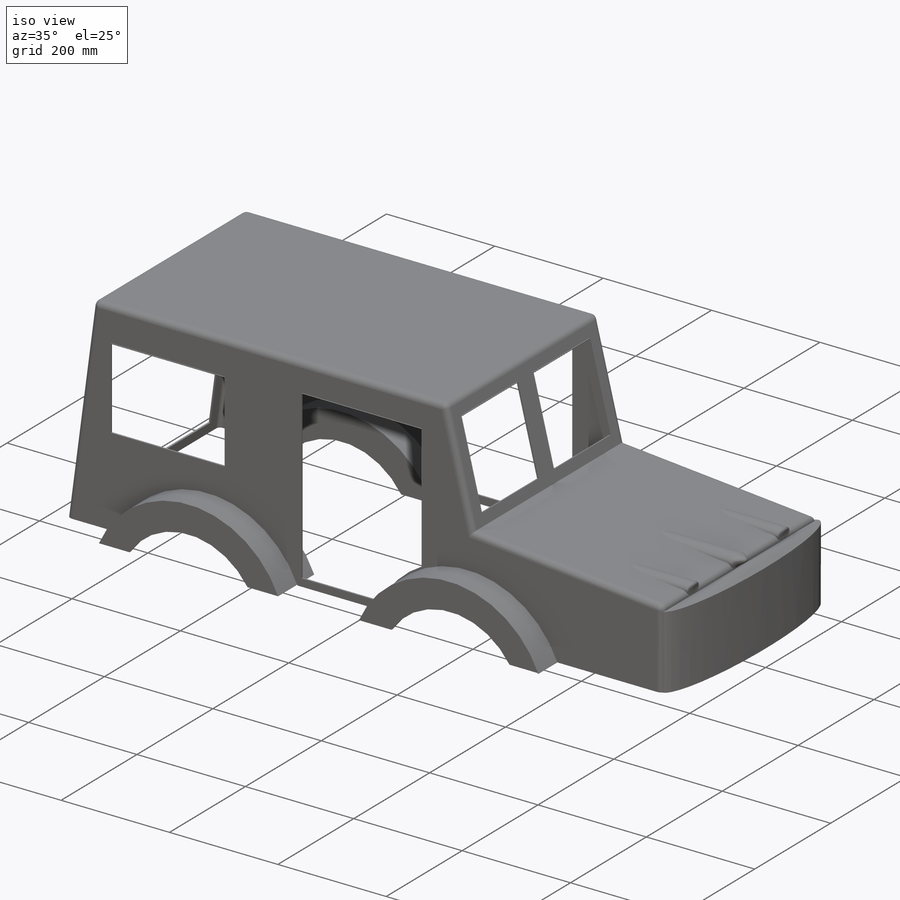
[diagram: iso view]
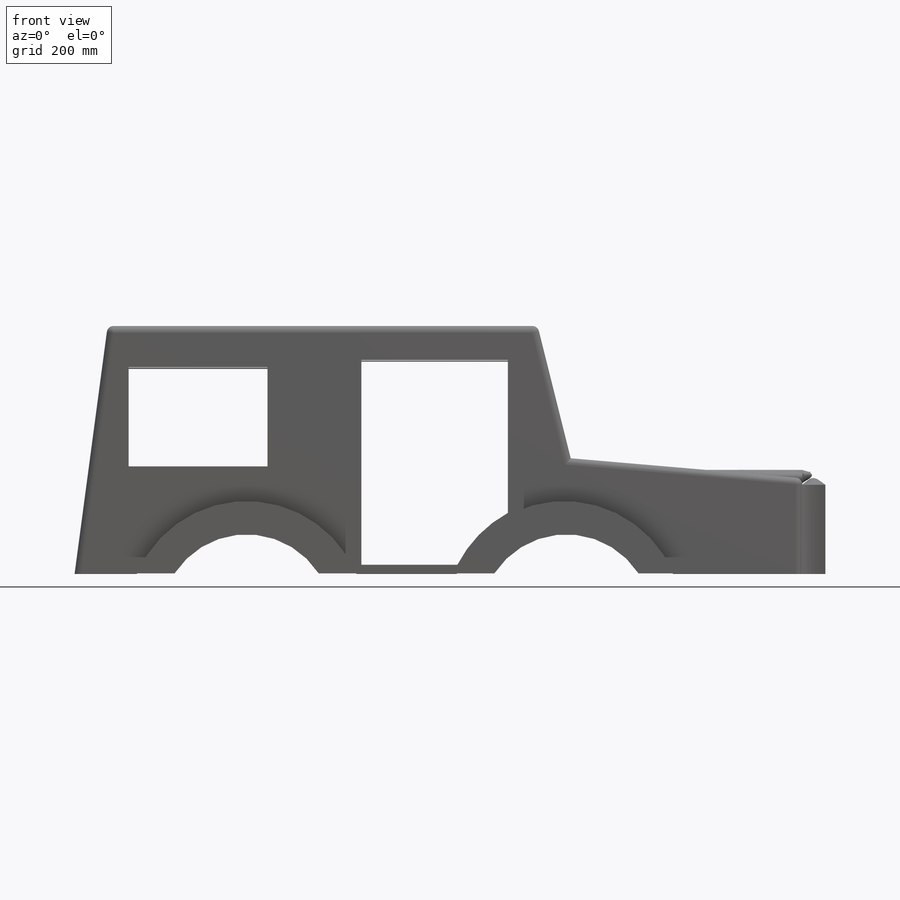
[diagram: front view]
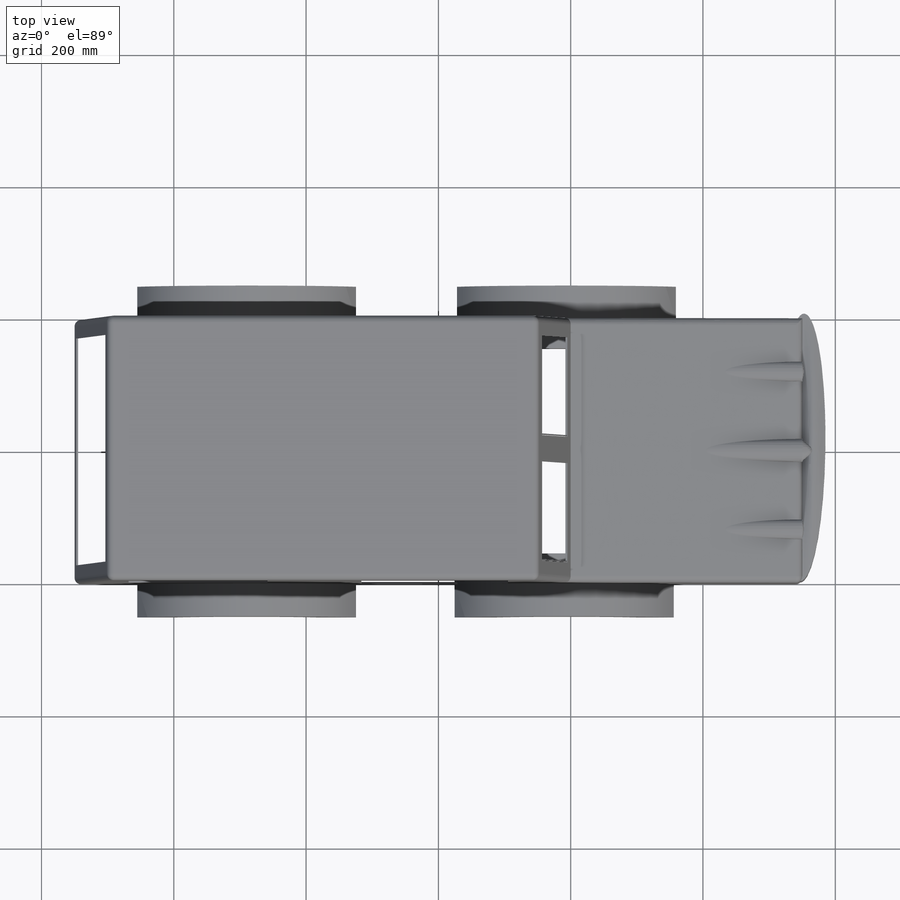
[diagram: top view]
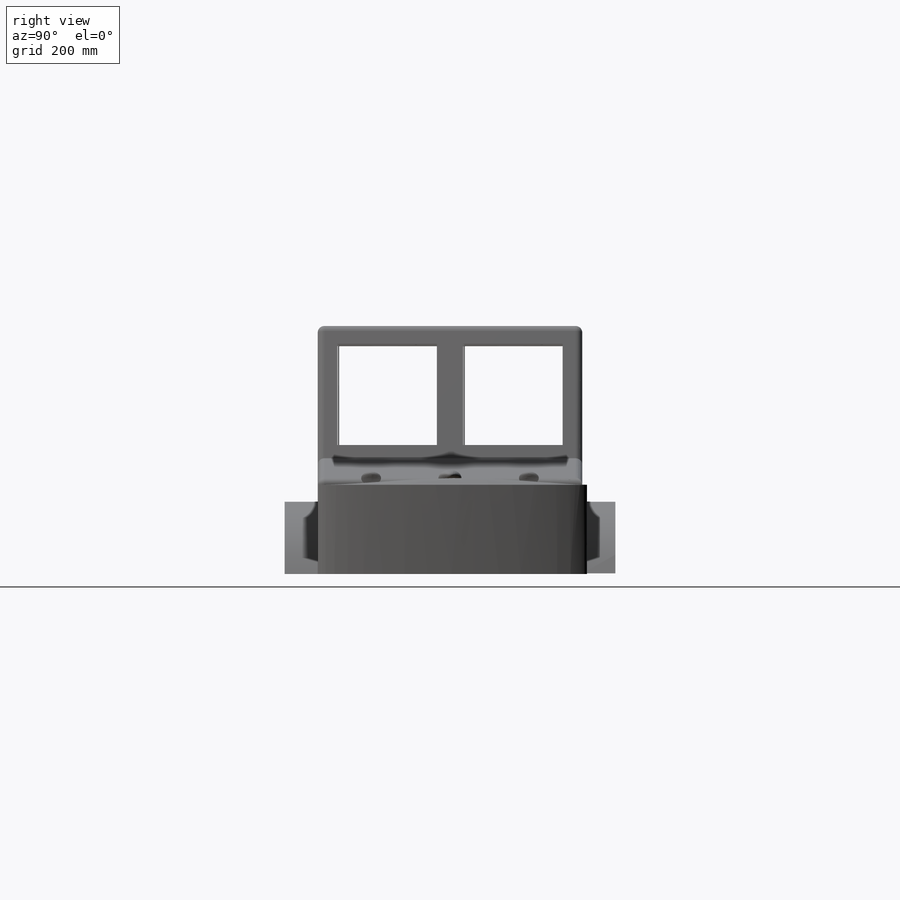
[diagram: right view]
SOLIDWORKS PART (.sldprt)
format: sldprt  version: not decoded by parser v0  size: 1,426,432 bytes
history: native  units: mm
features: sketch x25, extrude x15, cut_extrude x10, plane x3, dome x2, material x1, fillet x1, shell x1 (+11 scaffold rows collapsed)
feature tree (69):
  scaffold x11  (default folders/planes/origin — collapsed)
  material  "AISI 316 退火不锈钢条 (SS)"
  plane  "前视"
  plane  "上视"
  plane  "右视"
  sketch  "草图1"  dims[D1=1100.0mm D2=400.0mm]
  extrude  "凸台-拉伸1"  Depth=175mm
  sketch  "草图2"  dims[D1=350.0mm D2=700.0mm]
  extrude  "凸台-拉伸3"  Depth=200mm
  sketch  "草图5"  dims[D1=350.0mm D2=0.0mm]
  extrude  "凸台-拉伸6"  Depth=400mm
  sketch  "草图6"  dims[D1=50.0mm]
  cut_extrude  "切除-拉伸1"  Depth=400mm
  sketch  "草图9"  dims[D1=30.0mm]
  cut_extrude  "切除-拉伸2"  Depth=400mm
  sketch  "草图11"  dims[D1=15.0mm D2=35.0mm D3=20.0mm D4=25.0mm]
  extrude  "凸台-拉伸7"  Depth=620mm
  fillet  "圆角3"  Radius=10mm
  sketch  "草图44"  dims[D1=70.0mm]
  extrude  "凸台-拉伸27"  Depth=135mm
  dome  "圆顶2"
  dome  "圆顶3"
  shell  "抽壳6"  Thickness=3mm
  sketch  "草图78"  dims[c1.D3=~306.944449mm c1.D4=360.0mm c1.D5=360.0mm c1.D1=350.0mm c1.D2=250.0mm c2.D3=70.0mm]
  extrude  "凸台-拉伸51"  Depth=50mm
  sketch  "草图80"  dims[D4=360.0mm D5=360.0mm D1=350.0mm D2=250.0mm D3=70.0mm]
  extrude  "凸台-拉伸52"  Depth=50mm
  sketch  "草图81"
  cut_extrude  "切除-拉伸34"  Depth=1mm
  sketch  "草图82"  dims[c1.D4=360.0mm c1.D5=354.0mm c1.D6=360.0mm c1.D3=354.0mm c1.D1=350.0mm c1.D2=250.0mm c2.D3=70.0mm c2.D6=~479.911503mm c2.D4=70.0mm]
  cut_extrude  "切除-拉伸35"  Depth=47mm
  sketch  "草图83"  dims[c1.D4=354.0mm c1.D5=354.0mm c1.D1=250.0mm c1.D2=350.0mm c1.D3=70.0mm c1.D6=~459.173304mm c2.D5=350.0mm c2.D2=350.0mm]
  cut_extrude  "切除-拉伸37"  Depth=42mm
  sketch  "草图84"  dims[D4=260.0mm D5=260.0mm D1=250.0mm D2=350.0mm D3=70.0mm]
  cut_extrude  "切除-拉伸39"  Depth=555mm
  sketch  "草图85"  dims[D1=334.0mm D2=343.0mm D3=~530.072796mm]
  cut_extrude  "切除-拉伸40"  Depth=63mm
  sketch  "草图86"  dims[D1=157.0mm D2=~150.392606mm]
  cut_extrude  "切除-拉伸42"  Depth=63mm
  sketch  "草图88"  dims[D1=210.0mm D2=150.0mm]
  cut_extrude  "切除-拉伸43"  Depth=516mm
  sketch  "草图90"  dims[D3=370.0mm D1=350.0mm D2=70.0mm]
  cut_extrude  "切除-拉伸44"  Depth=516mm
  sketch  "草图91"  dims[D2=2.0mm D1=1.5mm]
  extrude  "凸台-拉伸53"  Depth=344.085337mm
  sketch  "草图92"  dims[D2=2.0mm D1=1.5mm]
  extrude  "凸台-拉伸54"  [1 undecoded]
  sketch  "草图93"  dims[D2=2.0mm D1=1.5mm]
  extrude  "凸台-拉伸55"  [1 undecoded]
  sketch  "草图94"  dims[D2=2.0mm D1=1.5mm]
  extrude  "凸台-拉伸56"  [1 undecoded]
  sketch  "草图95"  dims[D2=2.0mm D1=1.5mm]
  extrude  "凸台-拉伸57"  [1 undecoded]
  sketch  "草图96"  dims[D2=2.0mm D1=1.5mm]
  extrude  "凸台-拉伸59"  Depth=233.029873mm
  sketch  "草图98"  dims[D2=2.0mm D1=1.5mm]
  extrude  "凸台-拉伸60"  Depth=233.029873mm
  sketch  "草图99"  dims[D2=2.0mm D1=1.5mm]
  extrude  "凸台-拉伸61"  Depth=351.029873mm
decode coverage: 47 of 54 modeling features carry decoded parameters
note: ~ marks probable driven/reference dimensions
note: 4 parameter values undecoded
summary: no parameter record found for 4 features
note: suppression state not decoded; provenance and decode notes live in map.json
